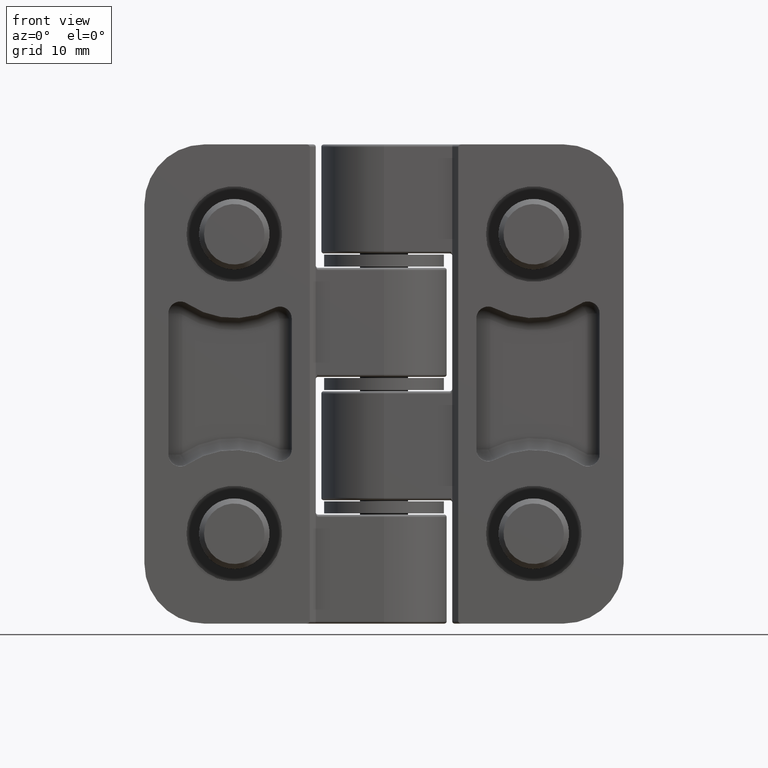
[diagram: clean part render]
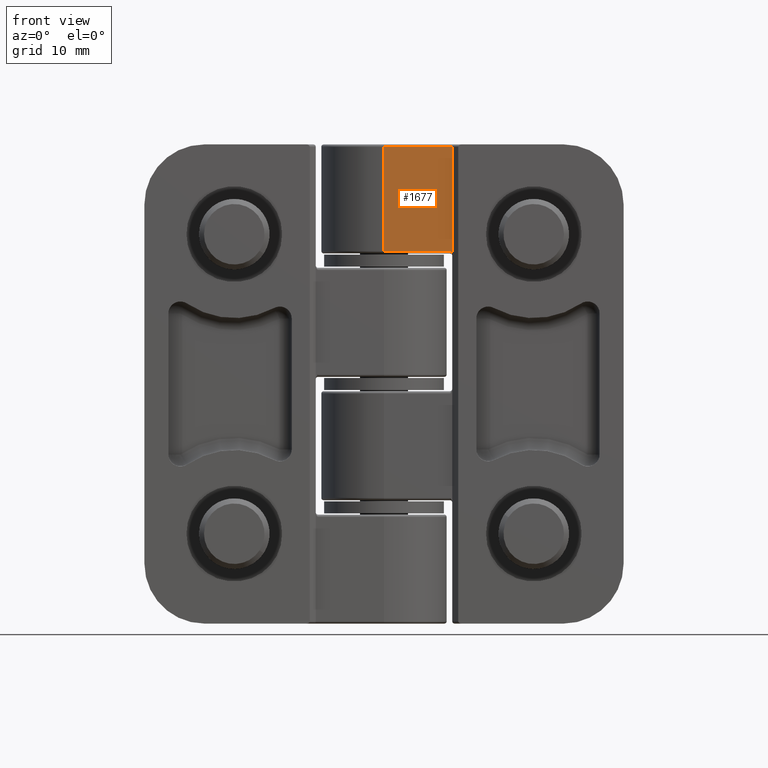
[diagram: same view with one face highlighted and labeled with its STEP entity id]
A machine part, front view. The second image highlights one B-rep face of the part: STEP entity #1677.
In plain terms, the highlighted planar face has unit normal (-0, -1, 0).
Its self-contained STEP definition (entity closure, byte-faithful):
#107=LINE('',#22928,#183);
#114=LINE('',#22945,#190);
#129=LINE('',#23015,#205);
#130=LINE('',#23017,#206);
#183=VECTOR('',#2116,5.5);
#190=VECTOR('',#2135,9.0464101615138);
#205=VECTOR('',#2214,5.7);
#206=VECTOR('',#2217,8.7);
#266=PLANE('',#1841);
#334=FACE_OUTER_BOUND('',#439,.T.);
#439=EDGE_LOOP('',(#1396,#1397,#1398,#1399,#1400));
#665=B_SPLINE_CURVE_WITH_KNOTS('',3,(#22889,#22890,#22891,#22892,#22893,
#22894),.UNSPECIFIED.,.F.,.F.,(4,2,4),(-0.0388052091391183,-0.0235125638265832,
0.),.UNSPECIFIED.);
#766=VERTEX_POINT('',#22887);
#767=VERTEX_POINT('',#22888);
#776=VERTEX_POINT('',#22927);
#780=VERTEX_POINT('',#22943);
#799=VERTEX_POINT('',#23011);
#960=EDGE_CURVE('',#766,#767,#665,.F.);
#975=EDGE_CURVE('',#766,#776,#107,.T.);
#984=EDGE_CURVE('',#767,#780,#114,.T.);
#1017=EDGE_CURVE('',#799,#780,#129,.T.);
#1018=EDGE_CURVE('',#776,#799,#130,.T.);
#1396=ORIENTED_EDGE('',*,*,#984,.T.);
#1397=ORIENTED_EDGE('',*,*,#1017,.F.);
#1398=ORIENTED_EDGE('',*,*,#1018,.F.);
#1399=ORIENTED_EDGE('',*,*,#975,.F.);
#1400=ORIENTED_EDGE('',*,*,#960,.T.);
#1677=ADVANCED_FACE('',(#334),#266,.T.);
#1841=AXIS2_PLACEMENT_3D('',#23016,#2215,#2216);
#2116=DIRECTION('',(-1.,3.89551938464967E-16,-2.43281279657733E-16));
#2135=DIRECTION('',(0.,0.,1.));
#2214=DIRECTION('',(1.,-3.89551938464967E-16,0.));
#2215=DIRECTION('center_axis',(-3.89551938464967E-16,-1.,0.));
#2216=DIRECTION('ref_axis',(1.,0.,0.));
#2217=DIRECTION('',(0.,0.,1.));
#22887=CARTESIAN_POINT('',(5.5,-5.25,11.1));
#22888=CARTESIAN_POINT('',(5.7,-5.25,10.7535898384862));
#22889=CARTESIAN_POINT('Ctrl Pts',(5.7,-5.25,10.7535898384862));
#22890=CARTESIAN_POINT('Ctrl Pts',(5.70000000000001,-5.25,10.8045653228613));
#22891=CARTESIAN_POINT('Ctrl Pts',(5.68208560002045,-5.25,10.8630539053698));
#22892=CARTESIAN_POINT('Ctrl Pts',(5.62078254323775,-5.25,10.9769553455592));
#22893=CARTESIAN_POINT('Ctrl Pts',(5.55541964441619,-5.25,11.0445803555838));
#22894=CARTESIAN_POINT('Ctrl Pts',(5.5,-5.25,11.1));
#22927=CARTESIAN_POINT('',(6.4293956955236E-16,-5.25,11.1));
#22928=CARTESIAN_POINT('',(2.85,-5.25,11.1));
#22943=CARTESIAN_POINT('',(5.7,-5.25,19.8));
#22945=CARTESIAN_POINT('',(5.7,-5.25,0.));
#23011=CARTESIAN_POINT('',(6.4293956955236E-16,-5.25,19.8));
#23015=CARTESIAN_POINT('',(4.02744620103208,-5.25,19.8));
#23016=CARTESIAN_POINT('Origin',(1.11022302462516E-15,-5.25,0.));
#23017=CARTESIAN_POINT('',(6.4293956955236E-16,-5.25,0.));